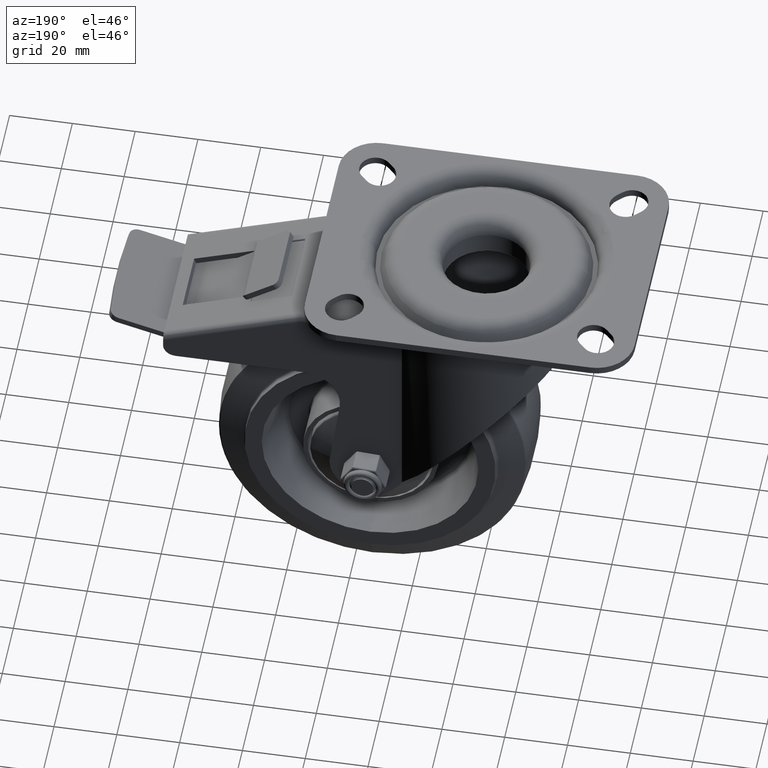
[diagram: clean part render]
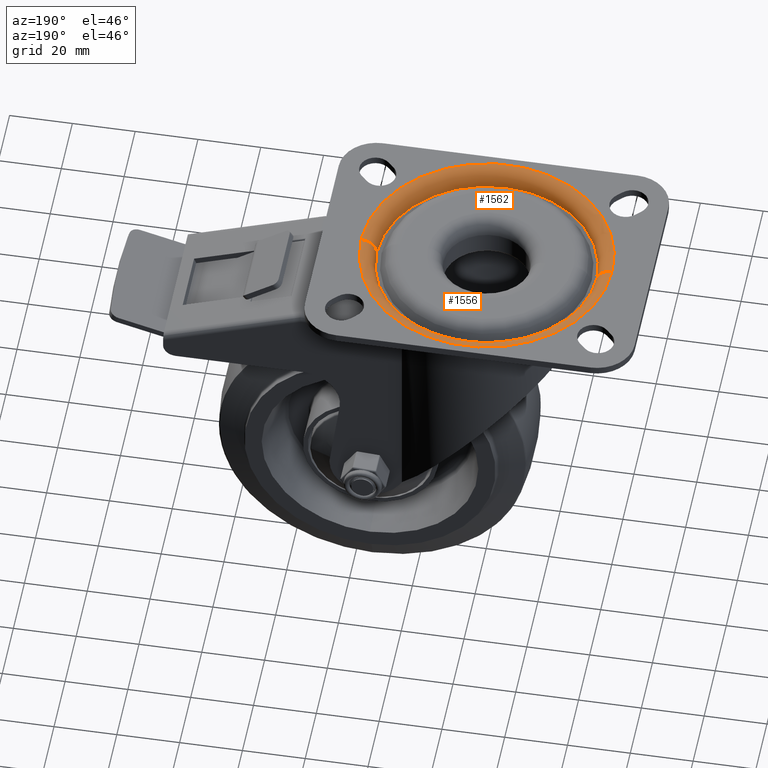
[diagram: same view with one multi-face feature highlighted, each face labeled with its STEP entity id]
A machine part, auxiliary view. The highlighted faces form ONE feature: a constant-radius fillet chain: 2 tangent blend faces with common blend radius 5 mm. The faces share edges in the B-rep.
Their STEP definitions:
[1] entity #1556 (Torus):
#1556=ADVANCED_FACE('99:63166',(#2910),#2911,.T.);
#2910=FACE_OUTER_BOUND('',#5326,.T.);
#2911=TOROIDAL_SURFACE('',#5327,0.04,0.005);
#5326=EDGE_LOOP('',(#13708,#13709,#13710,#13711));
#5327=AXIS2_PLACEMENT_3D('',#13712,#13713,#13714);
#13708=ORIENTED_EDGE('',*,*,#23269,.F.);
#13709=ORIENTED_EDGE('',*,*,#23270,.T.);
#13710=ORIENTED_EDGE('',*,*,#23271,.F.);
#13711=ORIENTED_EDGE('',*,*,#23272,.T.);
#13712=CARTESIAN_POINT('',(0.0,0.0,-0.005));
#13713=DIRECTION('',(-0.0,0.0,-1.0));
#13714=DIRECTION('',(-1.0,0.0,0.0));
#23269=EDGE_CURVE('',#26277,#26278,#26279,.T.);
#23270=EDGE_CURVE('99:63874',#26277,#26280,#26281,.T.);
#23271=EDGE_CURVE('',#26282,#26280,#26283,.T.);
#23272=EDGE_CURVE('99:63877',#26282,#26278,#26284,.T.);
#26277=VERTEX_POINT('',#31092);
#26278=VERTEX_POINT('',#31093);
#26279=CIRCLE('',#31094,0.005);
#26280=VERTEX_POINT('',#31095);
#26281=CIRCLE('',#31096,0.035);
#26282=VERTEX_POINT('',#31097);
#26283=CIRCLE('',#31098,0.005);
#26284=CIRCLE('',#31099,0.04);
#31092=CARTESIAN_POINT('',(-0.035,0.0,-0.005));
#31093=CARTESIAN_POINT('',(-0.04,-4.89858719658941E-18,0.0));
#31094=AXIS2_PLACEMENT_3D('',#41408,#41409,#41410);
#31095=CARTESIAN_POINT('',(0.035,4.28626379701574E-18,-0.005));
#31096=AXIS2_PLACEMENT_3D('',#41411,#41412,#41413);
#31097=CARTESIAN_POINT('',(0.04,4.89858719658941E-18,0.0));
#31098=AXIS2_PLACEMENT_3D('',#41414,#41415,#41416);
#31099=AXIS2_PLACEMENT_3D('',#41417,#41418,#41419);
#41408=CARTESIAN_POINT('',(-0.04,-4.89858719658941E-18,-0.005));
#41409=DIRECTION('',(1.22464679914735E-16,-1.0,-0.0));
#41410=DIRECTION('',(-1.0,-1.22464679914735E-16,0.0));
#41411=CARTESIAN_POINT('',(0.0,0.0,-0.005));
#41412=DIRECTION('',(0.0,0.0,-1.0));
#41413=DIRECTION('',(-1.0,0.0,0.0));
#41414=CARTESIAN_POINT('',(0.04,4.89858719658941E-18,-0.005));
#41415=DIRECTION('',(1.22464679914735E-16,-1.0,-0.0));
#41416=DIRECTION('',(1.0,1.22464679914735E-16,0.0));
#41417=CARTESIAN_POINT('',(0.0,0.0,0.0));
#41418=DIRECTION('',(0.0,-0.0,1.0));
#41419=DIRECTION('',(1.0,1.22464679914735E-16,0.0));
[2] entity #1562 (Torus):
#1562=ADVANCED_FACE('99:63166',(#2923),#2924,.T.);
#2923=FACE_OUTER_BOUND('',#5339,.T.);
#2924=TOROIDAL_SURFACE('',#5340,0.04,0.005);
#5339=EDGE_LOOP('',(#13846,#13847,#13848,#13849,#13850));
#5340=AXIS2_PLACEMENT_3D('',#13851,#13852,#13853);
#13846=ORIENTED_EDGE('',*,*,#23269,.T.);
#13847=ORIENTED_EDGE('',*,*,#23380,.T.);
#13848=ORIENTED_EDGE('',*,*,#23381,.T.);
#13849=ORIENTED_EDGE('',*,*,#23271,.T.);
#13850=ORIENTED_EDGE('',*,*,#23382,.T.);
#13851=CARTESIAN_POINT('',(0.0,0.0,-0.005));
#13852=DIRECTION('',(-0.0,0.0,-1.0));
#13853=DIRECTION('',(-1.0,0.0,0.0));
#23269=EDGE_CURVE('',#26277,#26278,#26279,.T.);
#23271=EDGE_CURVE('',#26282,#26280,#26283,.T.);
#23380=EDGE_CURVE('99:63877',#26278,#26494,#26495,.T.);
#23381=EDGE_CURVE('99:63877',#26494,#26282,#26496,.T.);
#23382=EDGE_CURVE('99:63874',#26280,#26277,#26497,.T.);
#26277=VERTEX_POINT('',#31092);
#26278=VERTEX_POINT('',#31093);
#26279=CIRCLE('',#31094,0.005);
#26280=VERTEX_POINT('',#31095);
#26282=VERTEX_POINT('',#31097);
#26283=CIRCLE('',#31098,0.005);
#26494=VERTEX_POINT('',#31359);
#26495=CIRCLE('',#31360,0.04);
#26496=CIRCLE('',#31361,0.04);
#26497=CIRCLE('',#31362,0.035);
#31092=CARTESIAN_POINT('',(-0.035,0.0,-0.005));
#31093=CARTESIAN_POINT('',(-0.04,-4.89858719658941E-18,0.0));
#31094=AXIS2_PLACEMENT_3D('',#41408,#41409,#41410);
#31095=CARTESIAN_POINT('',(0.035,4.28626379701574E-18,-0.005));
#31097=CARTESIAN_POINT('',(0.04,4.89858719658941E-18,0.0));
#31098=AXIS2_PLACEMENT_3D('',#41414,#41415,#41416);
#31359=CARTESIAN_POINT('',(0.039990242880534,-0.00088344459695816,0.0));
#31360=AXIS2_PLACEMENT_3D('',#41641,#41642,#41643);
#31361=AXIS2_PLACEMENT_3D('',#41644,#41645,#41646);
#31362=AXIS2_PLACEMENT_3D('',#41647,#41648,#41649);
#41408=CARTESIAN_POINT('',(-0.04,-4.89858719658941E-18,-0.005));
#41409=DIRECTION('',(1.22464679914735E-16,-1.0,-0.0));
#41410=DIRECTION('',(-1.0,-1.22464679914735E-16,0.0));
#41414=CARTESIAN_POINT('',(0.04,4.89858719658941E-18,-0.005));
#41415=DIRECTION('',(1.22464679914735E-16,-1.0,-0.0));
#41416=DIRECTION('',(1.0,1.22464679914735E-16,0.0));
#41641=CARTESIAN_POINT('',(0.0,0.0,0.0));
#41642=DIRECTION('',(0.0,-0.0,1.0));
#41643=DIRECTION('',(1.0,1.22464679914735E-16,0.0));
#41644=CARTESIAN_POINT('',(0.0,0.0,0.0));
#41645=DIRECTION('',(0.0,-0.0,1.0));
#41646=DIRECTION('',(1.0,1.22464679914735E-16,0.0));
#41647=CARTESIAN_POINT('',(0.0,0.0,-0.005));
#41648=DIRECTION('',(0.0,0.0,-1.0));
#41649=DIRECTION('',(-1.0,0.0,0.0));